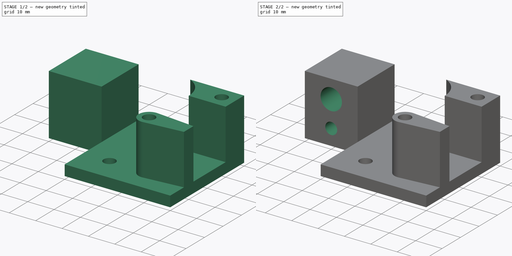
[diagram: build sequence overview — one tinted view per stage of 2, left to right]
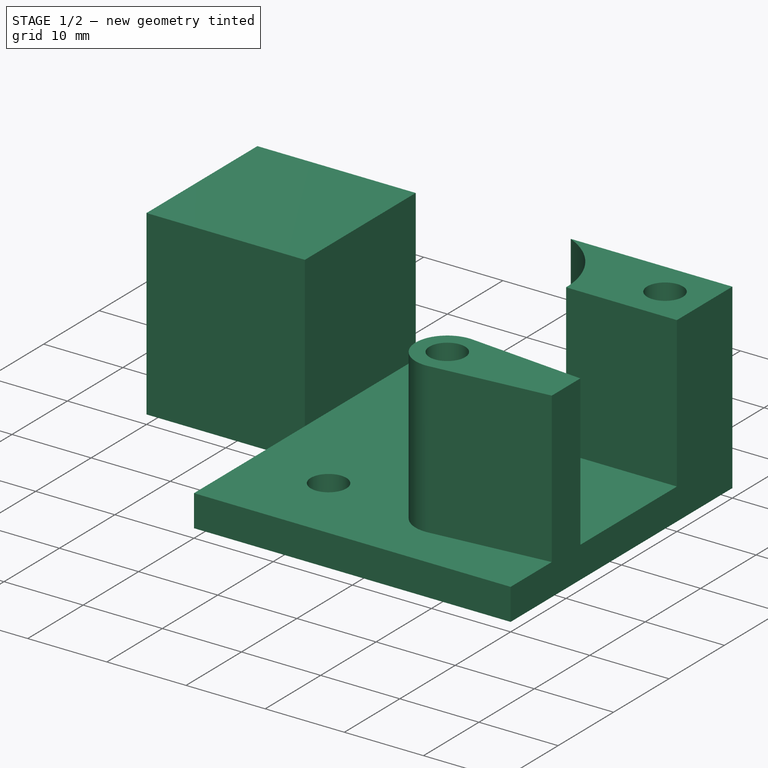
[diagram: stage 1 of 2 — iso view after this stage's code; geometry added in this stage tinted green]
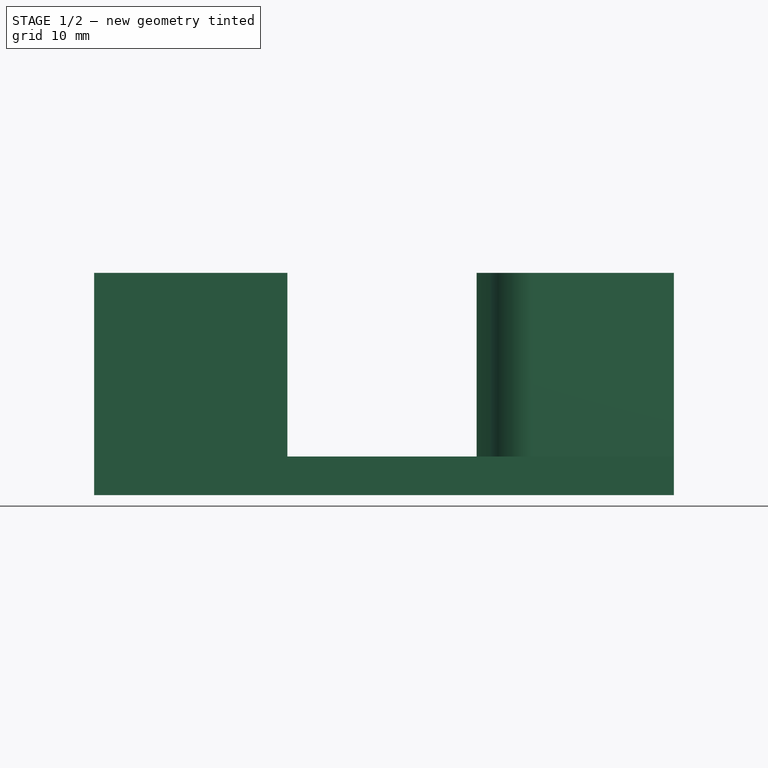
[diagram: stage 1 of 2 — front view after this stage's code; geometry added in this stage tinted green]
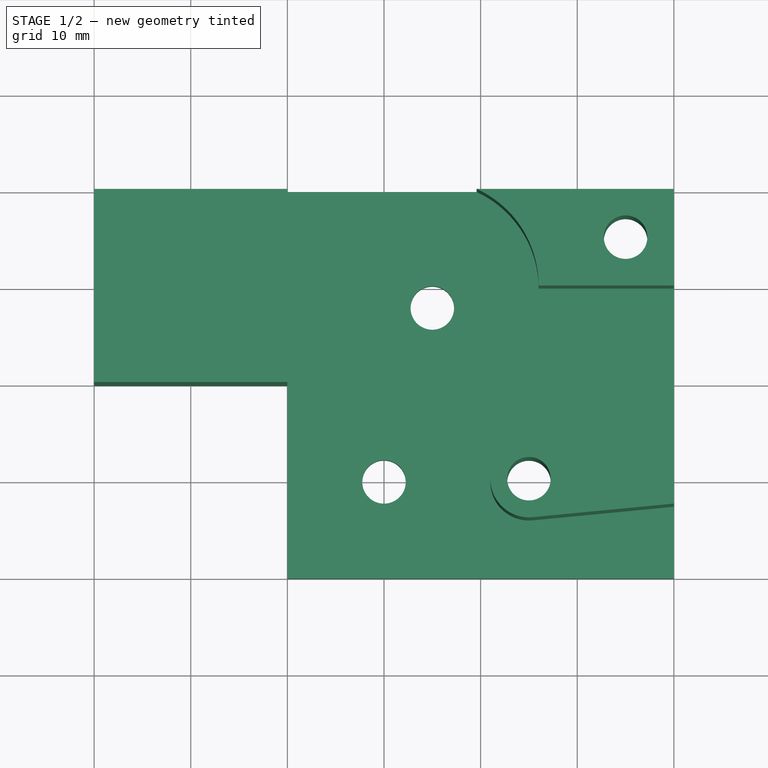
[diagram: stage 1 of 2 — top view after this stage's code; geometry added in this stage tinted green]
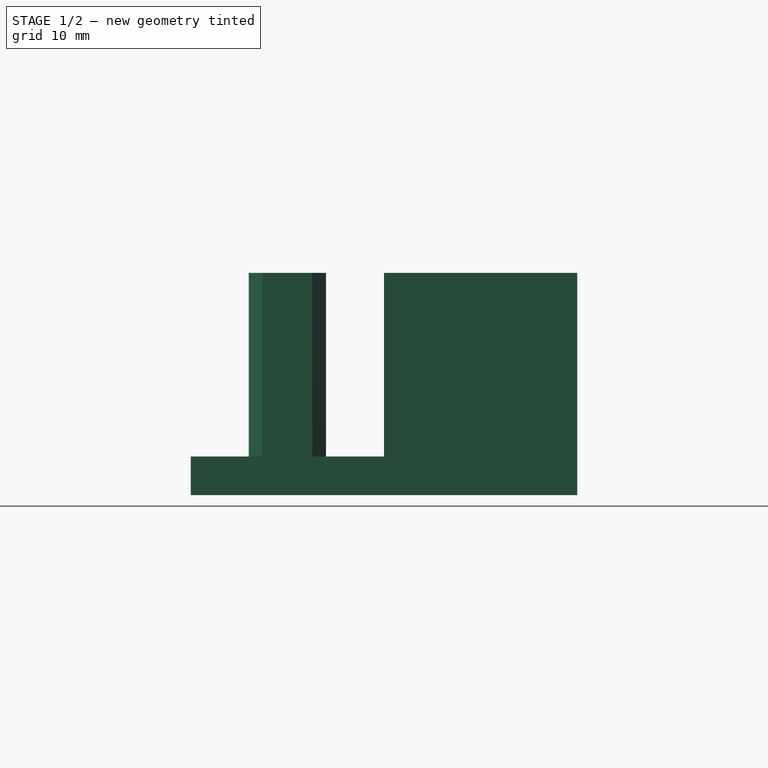
[diagram: stage 1 of 2 — right view after this stage's code; geometry added in this stage tinted green]
FCSTD DOCUMENT
Label: idler-block
objects: Sketcher::SketchObject×3, PartDesign::Pocket×2, PartDesign::Pad×1
note: 9 computed .brp shape members not serialized (recipe doc carries the construction recipe); baked Part::Feature solids carry a one-line shape summary decoded from their .brp

FEATURE [Sketcher::SketchObject] Sketch
  sketch-geometry (10):
    g0: LineSegment StartX=0 StartY=-20 StartZ=0 EndX=40 EndY=-20 EndZ=0
    g1: LineSegment StartX=40 StartY=-20 StartZ=0 EndX=40 EndY=20 EndZ=0
    g2: LineSegment StartX=40 StartY=20 StartZ=0 EndX=-20 EndY=20 EndZ=0
    g3: LineSegment StartX=-20 StartY=20 StartZ=0 EndX=-20 EndY=0 EndZ=0
    g4: LineSegment StartX=-20 StartY=0 StartZ=0 EndX=0 EndY=0 EndZ=0
    g5: LineSegment StartX=0 StartY=0 StartZ=0 EndX=0 EndY=-20 EndZ=0
    g6: Circle CenterX=15 CenterY=8 CenterZ=0 NormalX=0 NormalY=0 NormalZ=1 Radius=2.25
    g7: Circle CenterX=10 CenterY=-10 CenterZ=0 NormalX=0 NormalY=0 NormalZ=1 Radius=2.25
    g8: Circle CenterX=25 CenterY=-10 CenterZ=0 NormalX=0 NormalY=0 NormalZ=1 Radius=2.25
    g9: Circle CenterX=35 CenterY=15 CenterZ=0 NormalX=0 NormalY=0 NormalZ=1 Radius=2.25
  constraints (29):
    c: Coincident(g0,g1)
    c: Coincident(g1,g2)
    c: Coincident(g2,g3)
    c: Horizontal(g0)
    c: Horizontal(g2)
    c: Vertical(g1)
    c: Vertical(g3)
    c: Distance(g1) = 40
    c: Distance(g2) = 60
    c: Horizontal(g4)
    c: Coincident(g4,g5)
    c: Vertical(g5)
    c: Coincident(g3,g4)
    c: Coincident(g0,g5)
    c: DistanceX(g4) = 20
    c: DistanceY(g5) = -20
    c: DistanceY(g6,g7) = -18
    c: Equal(g6,g7)
    c: Radius(g7) = 2.25
    c: Coincident(g4,g-1)
    c: DistanceX(g6) = 15
    c: DistanceX(g7,g6) = 5
    c: DistanceY(g8,g7) = 0
    c: DistanceX(g-1,g8) = 25
    c: DistanceY(g7,g0) = -10
    c: Equal(g8,g7)
    c: Radius(g9) = 2.25
    c: DistanceY(g9,g1) = 5
    c: DistanceX(g9,g1) = 5
FEATURE [PartDesign::Pad] Pad
  Length = 23
  Length2 = 100
  Sketch = -> Sketch
  Type = 0
FEATURE [Sketcher::SketchObject] Sketch001
  Placement = pos=(0,0,23) rot=(0,0,1;0rad)
  Support = -> Pad [Face12]
  sketch-geometry (10):
    g0: LineSegment StartX=46 StartY=10 StartZ=0 EndX=26 EndY=10 EndZ=0
    g1: LineSegment StartX=15 StartY=21 StartZ=0 EndX=0 EndY=21 EndZ=0
    g2: ArcOfCircle CenterX=15 CenterY=10 CenterZ=0 NormalX=0 NormalY=0 NormalZ=1 Radius=11 StartAngle=0 EndAngle=1.5708
    g3: LineSegment StartX=46 StartY=-23 StartZ=0 EndX=46 EndY=-12 EndZ=0
    g4: ArcOfCircle CenterX=25 CenterY=-10 CenterZ=0 NormalX=0 NormalY=0 NormalZ=1 Radius=4 StartAngle=1.47498 EndAngle=4.8082
    g5: LineSegment StartX=25.3827 StartY=-6.01835 StartZ=0 EndX=46 EndY=-8 EndZ=0
    g6: LineSegment StartX=25.3827 StartY=-13.9817 StartZ=0 EndX=46 EndY=-12 EndZ=0
    g7: LineSegment StartX=46 StartY=-8 StartZ=0 EndX=46 EndY=10 EndZ=0
    g8: LineSegment StartX=0 StartY=-23 StartZ=0 EndX=46 EndY=-23 EndZ=0
    g9: LineSegment StartX=0 StartY=21 StartZ=0 EndX=0 EndY=-23 EndZ=0
  constraints (31):
    c: Horizontal(g0)
    c: Horizontal(g1)
    c: Coincident(g2,g0)
    c: Radius(g2) = 11
    c: Perpendicular(g0,g2)
    c: Coincident(g1,g2)
    c: Tangent(g1,g2)
    c: Vertical(g3)
    c: Coincident(g0,g7)
    c: DistanceX(g2) = 15
    c: DistanceY(g2) = 10
    c: Coincident(g5,g4)
    c: Coincident(g6,g4)
    c: Coincident(g3,g6)
    c: Coincident(g7,g5)
    c: Tangent(g3,g7)
    c: Tangent(g4,g5)
    c: Tangent(g4,g6)
    c: DistanceX(g4) = 25
    c: DistanceY(g5,g3) = -4
    c: Horizontal(g8)
    c: Coincident(g3,g8)
    c: DistanceY(g3) = 11
    c: Vertical(g9)
    c: Coincident(g8,g9)
    c: Distance(g8) = 46
    c: Coincident(g1,g9)
    c: DistanceX(g-1,g8) = 0
    c: DistanceY(g-1,g4) = -10
    c: Radius(g4) = 4
    c: DistanceY(g4,g5) = 2
FEATURE [PartDesign::Pocket] Pocket  label="Pocket-belt-path"
  Length = 19
  Sketch = -> Sketch001
  Type = 0
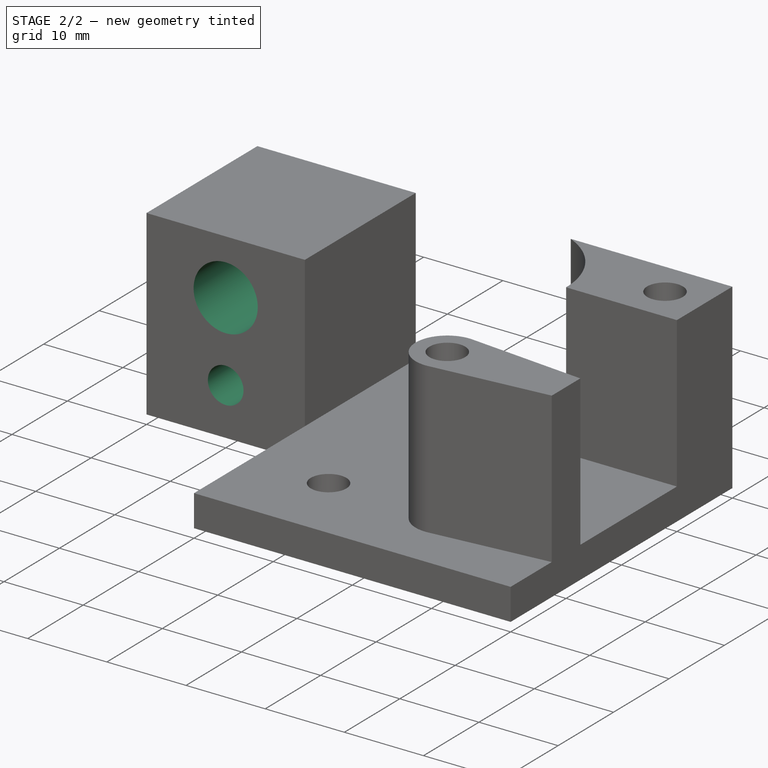
[diagram: stage 2 of 2 — iso view after this stage's code; geometry added in this stage tinted green]
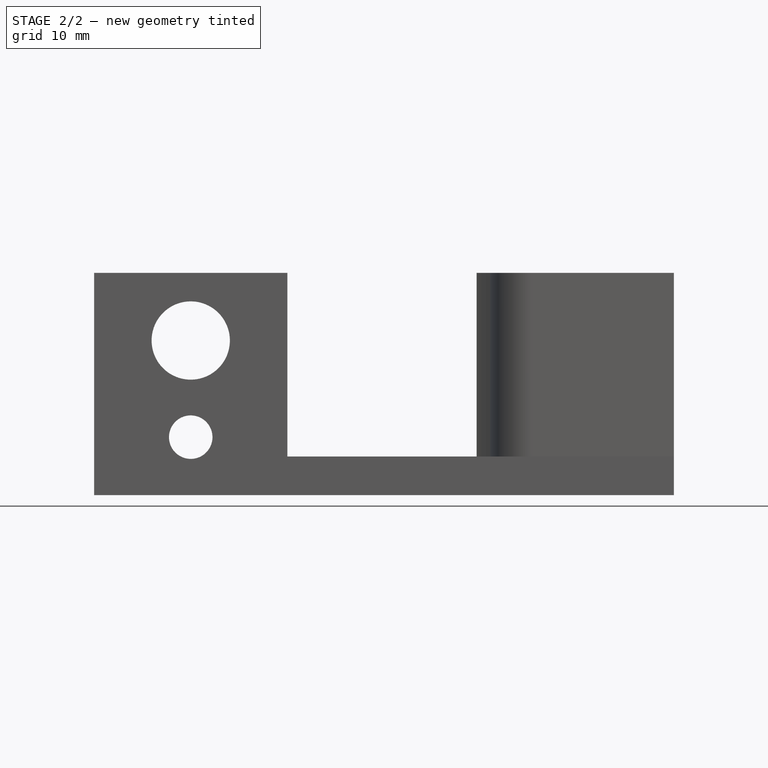
[diagram: stage 2 of 2 — front view after this stage's code; geometry added in this stage tinted green]
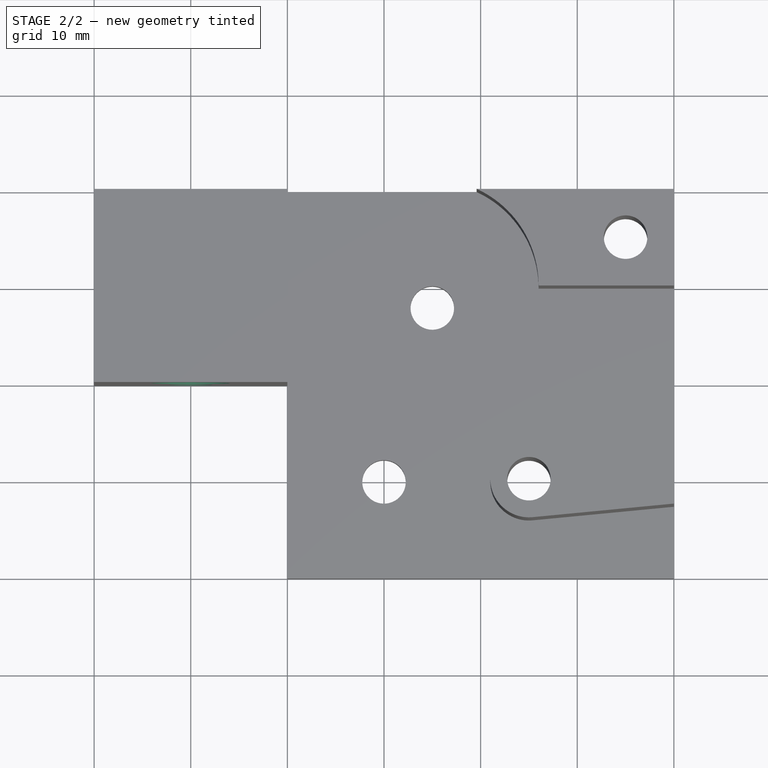
[diagram: stage 2 of 2 — top view after this stage's code; geometry added in this stage tinted green]
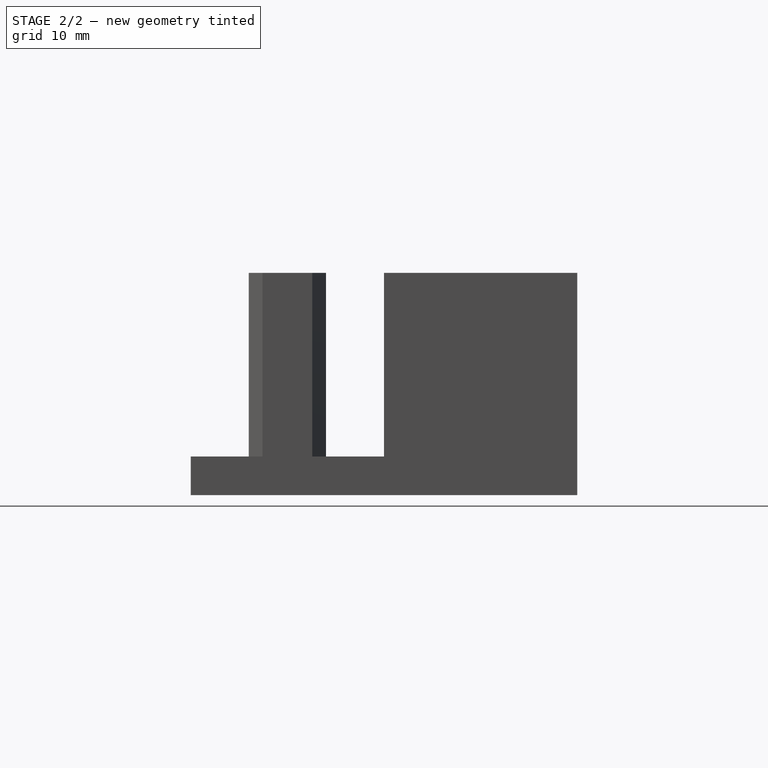
[diagram: stage 2 of 2 — right view after this stage's code; geometry added in this stage tinted green]
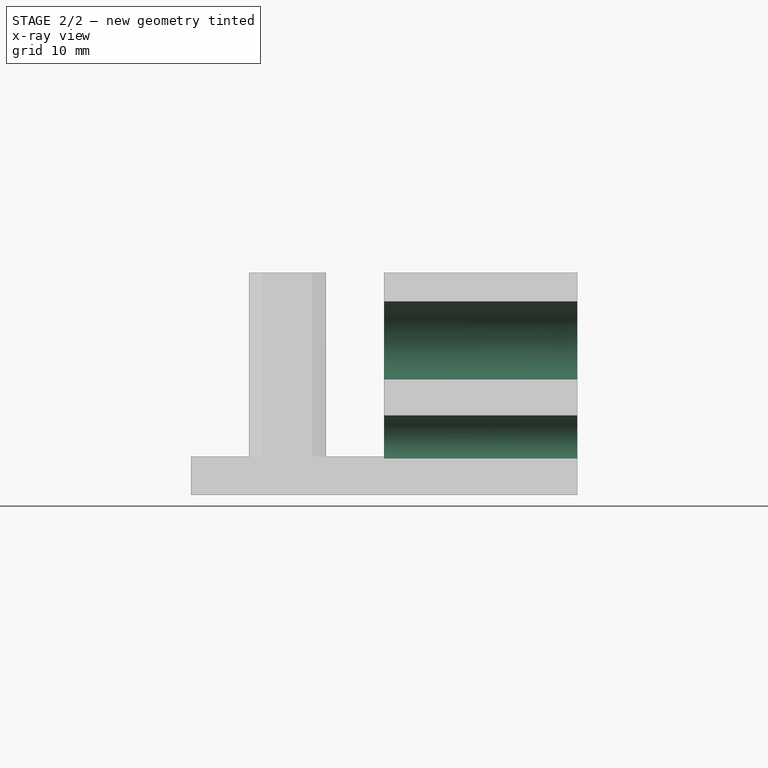
[diagram: stage 2 of 2 — x-ray composite at the right view; earlier geometry ghosted, this stage's added geometry solid]
FEATURE [Sketcher::SketchObject] Sketch002
  Placement = pos=(0,0,0) rot=(1,0,0;1.5708rad)
  Support = -> Pocket [Face3]
  sketch-geometry (2):
    g0: Circle CenterX=-10 CenterY=16 CenterZ=0 NormalX=0 NormalY=0 NormalZ=1 Radius=4.05
    g1: Circle CenterX=-10 CenterY=6 CenterZ=0 NormalX=0 NormalY=0 NormalZ=1 Radius=2.25
  constraints (6):
    c: Radius(g0) = 4.05
    c: DistanceX(g0) = -10
    c: DistanceY(g0) = 16
    c: Radius(g1) = 2.25
    c: DistanceX(g-1,g1) = -10
    c: DistanceY(g-1,g1) = 6
FEATURE [PartDesign::Pocket] Pocket001  label="idler-block"
  Length = 5
  Sketch = -> Sketch002
  Type = 1
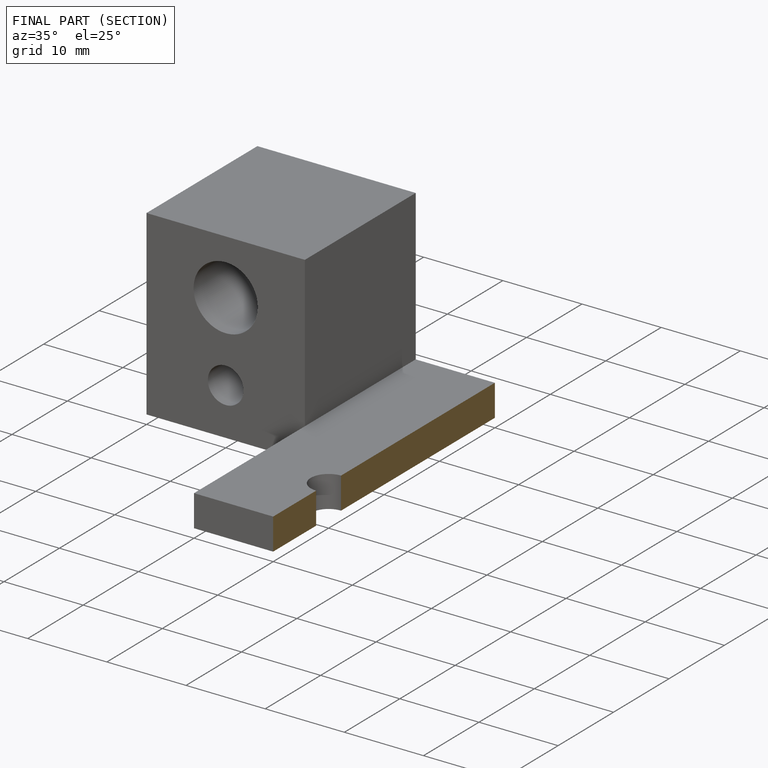
[diagram: finished part — half-section view (interior)]
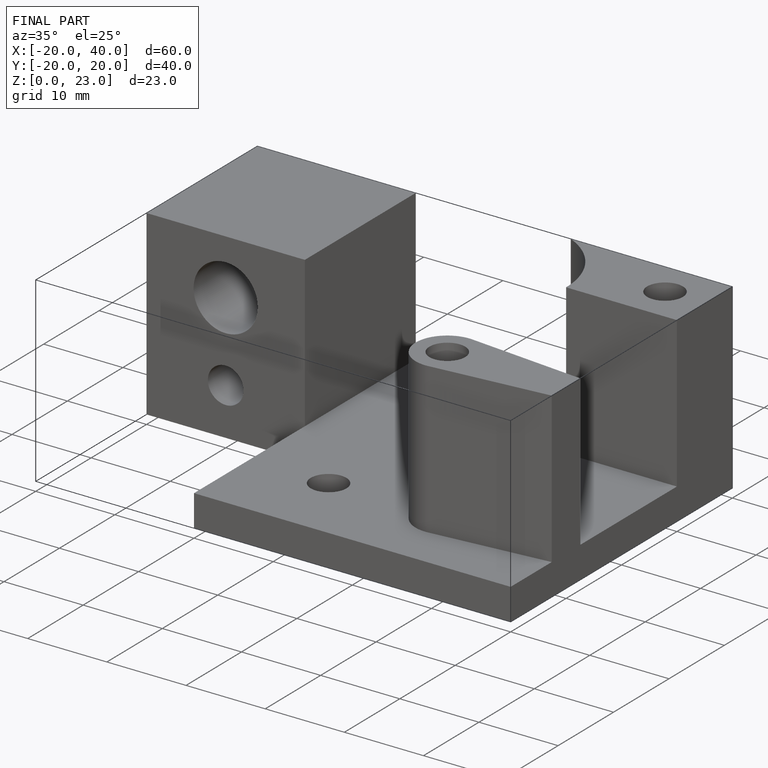
[diagram: finished part — iso view with bounding-box wireframe]
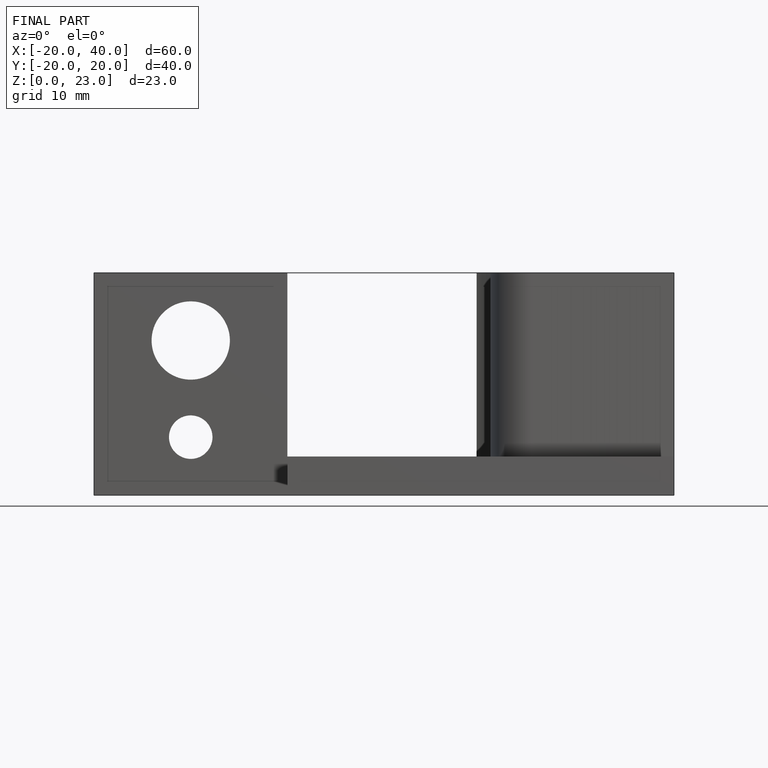
[diagram: finished part — front view with bounding-box wireframe]
